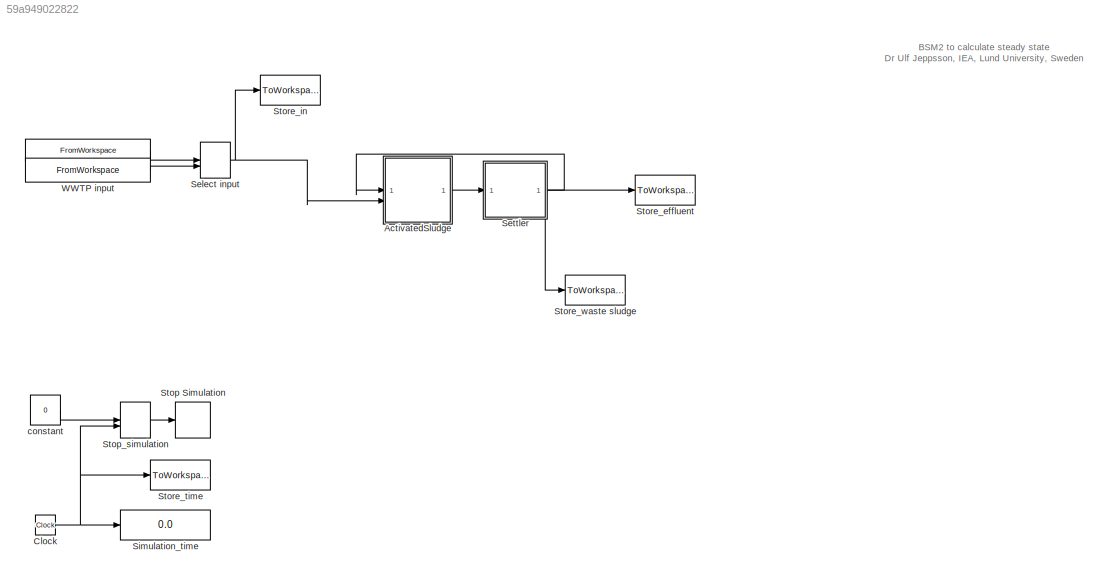
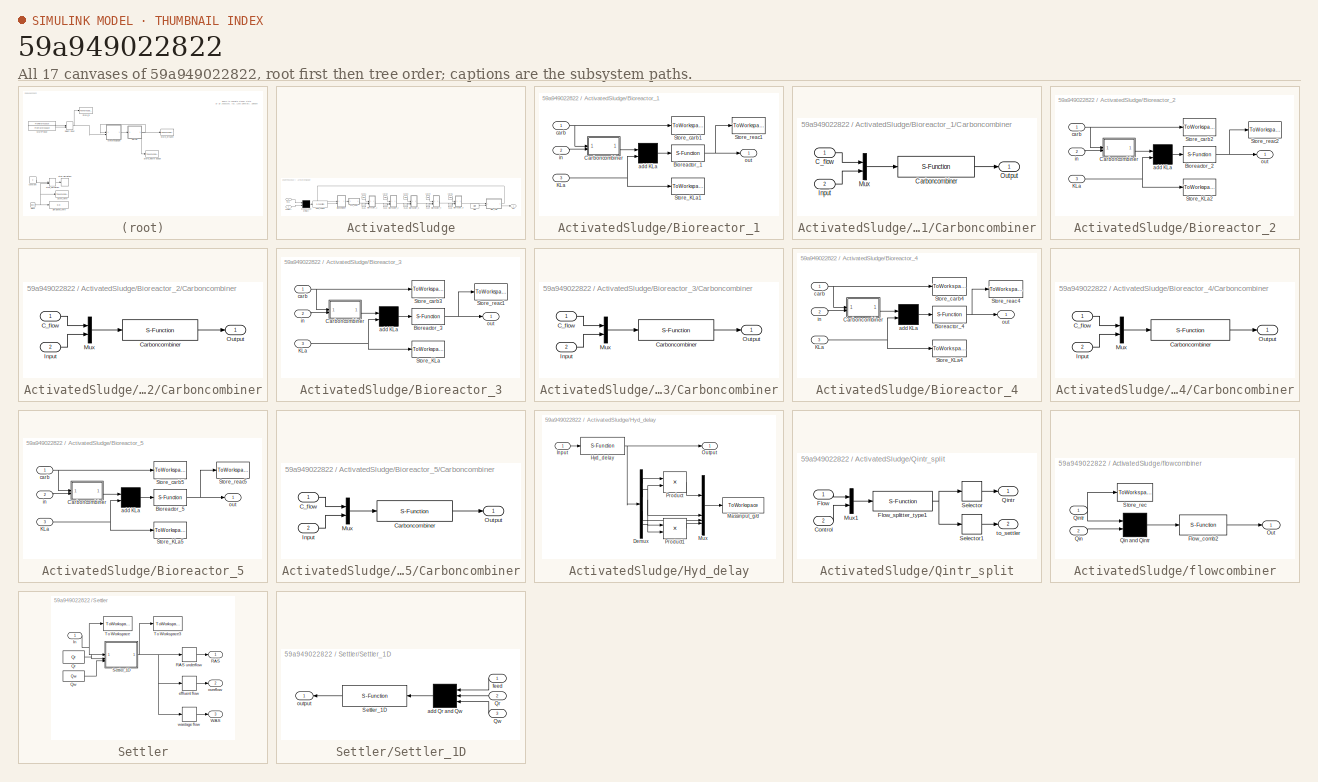
[diagram: thumbnail index - all 17 canvases of the model, root first then tree order]
MODEL slx_59a949022822
KIND model
CONFIG AbsTol = 1e-8
CONFIG EnableMultiTasking = off
CONFIG FixedStep = 0.01
CONFIG MaxStep = auto
CONFIG MinStep = auto
CONFIG RelTol = 1e-5
CONFIG SampleTimeConstraint = Unconstrained
CONFIG SolverName = ode15s
CONFIG StartTime = 0.0
CONFIG StopTime = 50
BLOCK [FromWorkspace]  
  OutputAfterFinalValue = Holding final value
  SampleTime = -1
  VariableName = CONSTINFLUENT_BSM2
  ZeroCross = off
BLOCK [Constant]  constant
  Value = 0
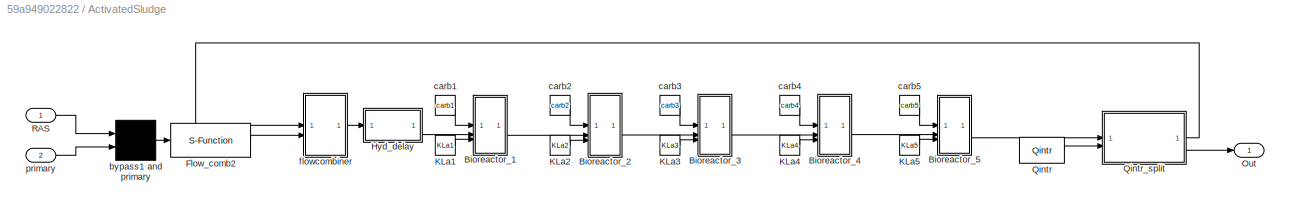
BLOCK [SubSystem] ActivatedSludge
BLOCK [SubSystem] ActivatedSludge/Bioreactor_1
BLOCK [S-Function] ActivatedSludge/Bioreactor_1/Bioreactor_1
  EnableBusSupport = off
  FunctionName = asm1_bsm2
  Parameters = XINIT1,PAR1,VOL1,SOSAT1,TEMPMODEL,ACTIVATE
  SFcnIsStateOwnerBlock = off
  SFunctionDeploymentMode = off
BLOCK [SubSystem] ActivatedSludge/Bioreactor_1/Carboncombiner
BLOCK [Inport] ActivatedSludge/Bioreactor_1/Carboncombiner/C_flow
BLOCK [S-Function] ActivatedSludge/Bioreactor_1/Carboncombiner/Carboncombiner
  EnableBusSupport = off
  FunctionName = carboncombiner_bsm2
  Parameters = CARBONSOURCECONC
  SFcnIsStateOwnerBlock = off
  SFunctionDeploymentMode = off
BLOCK [Inport] ActivatedSludge/Bioreactor_1/Carboncombiner/Input
  Port = 2
BLOCK [Mux] ActivatedSludge/Bioreactor_1/Carboncombiner/Mux
  DisplayOption = bar
  Inputs = 2
BLOCK [Outport] ActivatedSludge/Bioreactor_1/Carboncombiner/Output
BLOCK [Inport] ActivatedSludge/Bioreactor_1/KLa
  Port = 3
BLOCK [ToWorkspace] ActivatedSludge/Bioreactor_1/Store_KLa1
  MaxDataPoints = inf
  SampleTime = -1
  VariableName = kla1in
BLOCK [ToWorkspace] ActivatedSludge/Bioreactor_1/Store_carb1
  MaxDataPoints = inf
  SampleTime = -1
  VariableName = carbon1in
BLOCK [ToWorkspace] ActivatedSludge/Bioreactor_1/Store_reac1
  MaxDataPoints = inf
  SampleTime = -1
  VariableName = reac1
BLOCK [Mux] ActivatedSludge/Bioreactor_1/add KLa
  Inputs = 2
BLOCK [Inport] ActivatedSludge/Bioreactor_1/carb
BLOCK [Inport] ActivatedSludge/Bioreactor_1/in
  Port = 2
BLOCK [Outport] ActivatedSludge/Bioreactor_1/out
BLOCK [SubSystem] ActivatedSludge/Bioreactor_2
BLOCK [S-Function] ActivatedSludge/Bioreactor_2/Bioreactor_2
  EnableBusSupport = off
  FunctionName = asm1_bsm2
  Parameters = XINIT2,PAR2,VOL2,SOSAT2,TEMPMODEL,ACTIVATE
  SFcnIsStateOwnerBlock = off
  SFunctionDeploymentMode = off
BLOCK [SubSystem] ActivatedSludge/Bioreactor_2/Carboncombiner
BLOCK [Inport] ActivatedSludge/Bioreactor_2/Carboncombiner/C_flow
BLOCK [S-Function] ActivatedSludge/Bioreactor_2/Carboncombiner/Carboncombiner
  EnableBusSupport = off
  FunctionName = carboncombiner_bsm2
  Parameters = CARBONSOURCECONC
  SFcnIsStateOwnerBlock = off
  SFunctionDeploymentMode = off
BLOCK [Inport] ActivatedSludge/Bioreactor_2/Carboncombiner/Input
  Port = 2
BLOCK [Mux] ActivatedSludge/Bioreactor_2/Carboncombiner/Mux
  DisplayOption = bar
  Inputs = 2
BLOCK [Outport] ActivatedSludge/Bioreactor_2/Carboncombiner/Output
BLOCK [Inport] ActivatedSludge/Bioreactor_2/KLa
  Port = 3
BLOCK [ToWorkspace] ActivatedSludge/Bioreactor_2/Store_KLa2
  MaxDataPoints = inf
  SampleTime = -1
  VariableName = kla2in
BLOCK [ToWorkspace] ActivatedSludge/Bioreactor_2/Store_carb2
  MaxDataPoints = inf
  SampleTime = -1
  VariableName = carbon2in
BLOCK [ToWorkspace] ActivatedSludge/Bioreactor_2/Store_reac2
  MaxDataPoints = inf
  SampleTime = -1
  VariableName = reac2
BLOCK [Mux] ActivatedSludge/Bioreactor_2/add KLa
  Inputs = 2
BLOCK [Inport] ActivatedSludge/Bioreactor_2/carb
BLOCK [Inport] ActivatedSludge/Bioreactor_2/in
  Port = 2
BLOCK [Outport] ActivatedSludge/Bioreactor_2/out
BLOCK [SubSystem] ActivatedSludge/Bioreactor_3
BLOCK [S-Function] ActivatedSludge/Bioreactor_3/Bioreactor_3
  EnableBusSupport = off
  FunctionName = asm1_bsm2
  Parameters = XINIT3,PAR3,VOL3,SOSAT3,TEMPMODEL,ACTIVATE
  SFcnIsStateOwnerBlock = off
  SFunctionDeploymentMode = off
BLOCK [SubSystem] ActivatedSludge/Bioreactor_3/Carboncombiner
BLOCK [Inport] ActivatedSludge/Bioreactor_3/Carboncombiner/C_flow
BLOCK [S-Function] ActivatedSludge/Bioreactor_3/Carboncombiner/Carboncombiner
  EnableBusSupport = off
  FunctionName = carboncombiner_bsm2
  Parameters = CARBONSOURCECONC
  SFcnIsStateOwnerBlock = off
  SFunctionDeploymentMode = off
BLOCK [Inport] ActivatedSludge/Bioreactor_3/Carboncombiner/Input
  Port = 2
BLOCK [Mux] ActivatedSludge/Bioreactor_3/Carboncombiner/Mux
  DisplayOption = bar
  Inputs = 2
BLOCK [Outport] ActivatedSludge/Bioreactor_3/Carboncombiner/Output
BLOCK [Inport] ActivatedSludge/Bioreactor_3/KLa
  Port = 3
BLOCK [ToWorkspace] ActivatedSludge/Bioreactor_3/Store_KLa
  MaxDataPoints = inf
  SampleTime = -1
  VariableName = kla3in
BLOCK [ToWorkspace] ActivatedSludge/Bioreactor_3/Store_carb3
  MaxDataPoints = inf
  SampleTime = -1
  VariableName = carbon3in
BLOCK [ToWorkspace] ActivatedSludge/Bioreactor_3/Store_reac1
  MaxDataPoints = inf
  SampleTime = -1
  VariableName = reac3
BLOCK [Mux] ActivatedSludge/Bioreactor_3/add KLa
  Inputs = 2
BLOCK [Inport] ActivatedSludge/Bioreactor_3/carb
BLOCK [Inport] ActivatedSludge/Bioreactor_3/in
  Port = 2
BLOCK [Outport] ActivatedSludge/Bioreactor_3/out
BLOCK [SubSystem] ActivatedSludge/Bioreactor_4
BLOCK [S-Function] ActivatedSludge/Bioreactor_4/Bioreactor_4
  EnableBusSupport = off
  FunctionName = asm1_bsm2
  Parameters = XINIT4,PAR4,VOL4,SOSAT4,TEMPMODEL,ACTIVATE
  SFcnIsStateOwnerBlock = off
  SFunctionDeploymentMode = off
BLOCK [SubSystem] ActivatedSludge/Bioreactor_4/Carboncombiner
BLOCK [Inport] ActivatedSludge/Bioreactor_4/Carboncombiner/C_flow
BLOCK [S-Function] ActivatedSludge/Bioreactor_4/Carboncombiner/Carboncombiner
  EnableBusSupport = off
  FunctionName = carboncombiner_bsm2
  Parameters = CARBONSOURCECONC
  SFcnIsStateOwnerBlock = off
  SFunctionDeploymentMode = off
BLOCK [Inport] ActivatedSludge/Bioreactor_4/Carboncombiner/Input
  Port = 2
BLOCK [Mux] ActivatedSludge/Bioreactor_4/Carboncombiner/Mux
  DisplayOption = bar
  Inputs = 2
BLOCK [Outport] ActivatedSludge/Bioreactor_4/Carboncombiner/Output
BLOCK [Inport] ActivatedSludge/Bioreactor_4/KLa
  Port = 3
BLOCK [ToWorkspace] ActivatedSludge/Bioreactor_4/Store_KLa4
  MaxDataPoints = inf
  SampleTime = -1
  VariableName = kla4in
BLOCK [ToWorkspace] ActivatedSludge/Bioreactor_4/Store_carb4
  MaxDataPoints = inf
  SampleTime = -1
  VariableName = carbon4in
BLOCK [ToWorkspace] ActivatedSludge/Bioreactor_4/Store_reac4
  MaxDataPoints = inf
  SampleTime = -1
  VariableName = reac4
BLOCK [Mux] ActivatedSludge/Bioreactor_4/add KLa
  Inputs = 2
BLOCK [Inport] ActivatedSludge/Bioreactor_4/carb
BLOCK [Inport] ActivatedSludge/Bioreactor_4/in
  Port = 2
BLOCK [Outport] ActivatedSludge/Bioreactor_4/out
BLOCK [SubSystem] ActivatedSludge/Bioreactor_5
BLOCK [S-Function] ActivatedSludge/Bioreactor_5/Bioreactor_5
  EnableBusSupport = off
  FunctionName = asm1_bsm2
  Parameters = XINIT5,PAR5,VOL5,SOSAT5,TEMPMODEL,ACTIVATE
  SFcnIsStateOwnerBlock = off
  SFunctionDeploymentMode = off
BLOCK [SubSystem] ActivatedSludge/Bioreactor_5/Carboncombiner
BLOCK [Inport] ActivatedSludge/Bioreactor_5/Carboncombiner/C_flow
BLOCK [S-Function] ActivatedSludge/Bioreactor_5/Carboncombiner/Carboncombiner
  EnableBusSupport = off
  FunctionName = carboncombiner_bsm2
  Parameters = CARBONSOURCECONC
  SFcnIsStateOwnerBlock = off
  SFunctionDeploymentMode = off
BLOCK [Inport] ActivatedSludge/Bioreactor_5/Carboncombiner/Input
  Port = 2
BLOCK [Mux] ActivatedSludge/Bioreactor_5/Carboncombiner/Mux
  DisplayOption = bar
  Inputs = 2
BLOCK [Outport] ActivatedSludge/Bioreactor_5/Carboncombiner/Output
BLOCK [Inport] ActivatedSludge/Bioreactor_5/KLa
  Port = 3
BLOCK [ToWorkspace] ActivatedSludge/Bioreactor_5/Store_KLa5
  MaxDataPoints = inf
  SampleTime = -1
  VariableName = kla5in
BLOCK [ToWorkspace] ActivatedSludge/Bioreactor_5/Store_carb5
  MaxDataPoints = inf
  SampleTime = -1
  VariableName = carbon5in
BLOCK [ToWorkspace] ActivatedSludge/Bioreactor_5/Store_reac5
  MaxDataPoints = inf
  SampleTime = -1
  VariableName = reac5
BLOCK [Mux] ActivatedSludge/Bioreactor_5/add KLa
  Inputs = 2
BLOCK [Inport] ActivatedSludge/Bioreactor_5/carb
BLOCK [Inport] ActivatedSludge/Bioreactor_5/in
  Port = 2
BLOCK [Outport] ActivatedSludge/Bioreactor_5/out
BLOCK [S-Function] ActivatedSludge/Flow_comb2
  EnableBusSupport = off
  FunctionName = combiner_bsm2
  SFcnIsStateOwnerBlock = off
  SFunctionDeploymentMode = off
BLOCK [SubSystem] ActivatedSludge/Hyd_delay
BLOCK [Demux] ActivatedSludge/Hyd_delay/Demux
  DisplayOption = none
  Outputs = [14,1,1,5]
BLOCK [S-Function] ActivatedSludge/Hyd_delay/Hyd_delay
  EnableBusSupport = off
  FunctionName = hyddelayv3_bsm2
  Parameters = XINITDELAY,PAR1,T
  SFcnIsStateOwnerBlock = off
  SFunctionDeploymentMode = off
BLOCK [Inport] ActivatedSludge/Hyd_delay/Input
BLOCK [ToWorkspace] ActivatedSludge/Hyd_delay/Massinput_g//d
  MaxDataPoints = inf
  SampleTime = -1
  VariableName = ASinput
BLOCK [Mux] ActivatedSludge/Hyd_delay/Mux
  DisplayOption = bar
BLOCK [Outport] ActivatedSludge/Hyd_delay/Output
BLOCK [Product] ActivatedSludge/Hyd_delay/Product
  OutDataTypeStr = Inherit: Same as first input
  SaturateOnIntegerOverflow = on
BLOCK [Product] ActivatedSludge/Hyd_delay/Product1
  OutDataTypeStr = Inherit: Same as first input
  SaturateOnIntegerOverflow = on
BLOCK [Constant] ActivatedSludge/KLa1
  Value = KLa1
BLOCK [Constant] ActivatedSludge/KLa2
  Value = KLa2
BLOCK [Constant] ActivatedSludge/KLa3
  Value = KLa3
BLOCK [Constant] ActivatedSludge/KLa4
  Value = KLa4
BLOCK [Constant] ActivatedSludge/KLa5
  Value = KLa5
BLOCK [Outport] ActivatedSludge/Out
BLOCK [Constant] ActivatedSludge/Qintr
  Value = Qintr
BLOCK [SubSystem] ActivatedSludge/Qintr_split
BLOCK [Inport] ActivatedSludge/Qintr_split/Control
  Port = 2
BLOCK [Inport] ActivatedSludge/Qintr_split/Flow
BLOCK [S-Function] ActivatedSludge/Qintr_split/Flow_splitter_type1
  EnableBusSupport = off
  FunctionName = flowsplitter_bsm2
  Parameters = Qintrtype
  SFcnIsStateOwnerBlock = off
  SFunctionDeploymentMode = off
BLOCK [Mux] ActivatedSludge/Qintr_split/Mux1
  DisplayOption = bar
  Inputs = 2
BLOCK [Outport] ActivatedSludge/Qintr_split/Qintr
BLOCK [Selector] ActivatedSludge/Qintr_split/Selector
  IndexOptions = Index vector (dialog)
  Indices = [1:21]
  InputPortWidth = 42
  OutputSizes = 1
BLOCK [Selector] ActivatedSludge/Qintr_split/Selector1
  IndexOptions = Index vector (dialog)
  Indices = [22:42]
  InputPortWidth = 42
  OutputSizes = 1
BLOCK [Outport] ActivatedSludge/Qintr_split/to_settler
  Port = 2
BLOCK [Inport] ActivatedSludge/RAS
BLOCK [Mux] ActivatedSludge/bypass1 and primary
  Inputs = 2
BLOCK [Constant] ActivatedSludge/carb1
  NameLocation = top
  Value = carb1
BLOCK [Constant] ActivatedSludge/carb2
  NameLocation = top
  Value = carb2
BLOCK [Constant] ActivatedSludge/carb3
  NameLocation = top
  Value = carb3
BLOCK [Constant] ActivatedSludge/carb4
  NameLocation = top
  Value = carb4
BLOCK [Constant] ActivatedSludge/carb5
  NameLocation = top
  Value = carb5
BLOCK [SubSystem] ActivatedSludge/flowcombiner
BLOCK [S-Function] ActivatedSludge/flowcombiner/Flow_comb2
  EnableBusSupport = off
  FunctionName = combiner_bsm2
  SFcnIsStateOwnerBlock = off
  SFunctionDeploymentMode = off
BLOCK [Outport] ActivatedSludge/flowcombiner/Out
BLOCK [Inport] ActivatedSludge/flowcombiner/Qin
  Port = 2
BLOCK [Mux] ActivatedSludge/flowcombiner/Qin and Qintr
  Inputs = 2
BLOCK [Inport] ActivatedSludge/flowcombiner/Qintr
BLOCK [ToWorkspace] ActivatedSludge/flowcombiner/Store_rec
  MaxDataPoints = inf
  VariableName = rec
BLOCK [Inport] ActivatedSludge/primary
  Port = 2
BLOCK [Clock] Clock
BLOCK [ManualSwitch] Select input
  CurrentSetting = 0
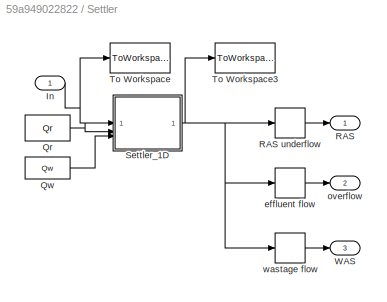
BLOCK [SubSystem] Settler
BLOCK [Inport] Settler/In
BLOCK [Constant] Settler/Qr
  Value = Qr
BLOCK [Constant] Settler/Qw
  Value = Qw
BLOCK [Outport] Settler/RAS
BLOCK [Selector] Settler/RAS underflow
  IndexOptions = Index vector (dialog)
  Indices = [1:21]
  InputPortWidth = 166
  OutputSizes = 1
BLOCK [SubSystem] Settler/Settler_1D
BLOCK [Inport] Settler/Settler_1D/Qr
  Port = 2
BLOCK [Inport] Settler/Settler_1D/Qw
  Port = 3
BLOCK [S-Function] Settler/Settler_1D/Settler_1D
  EnableBusSupport = off
  FunctionName = settler1dv5_bsm2
  Parameters = SETTLERINIT,SETTLERPAR,DIM,LAYER,MODELTYPE,TEMPMODEL,ACTIVATE
  SFcnIsStateOwnerBlock = off
  SFunctionDeploymentMode = off
BLOCK [Mux] Settler/Settler_1D/add Qr and Qw
  Inputs = 3
BLOCK [Inport] Settler/Settler_1D/feed
BLOCK [Outport] Settler/Settler_1D/output
BLOCK [ToWorkspace] Settler/To Workspace
  MaxDataPoints = inf
  VariableName = feed
BLOCK [ToWorkspace] Settler/To Workspace3
  MaxDataPoints = inf
  VariableName = settler
BLOCK [Outport] Settler/WAS
  Port = 3
BLOCK [Selector] Settler/effluent flow
  IndexOptions = Index vector (dialog)
  Indices = [23:43]
  InputPortWidth = 166
  OutputSizes = 1
BLOCK [Outport] Settler/overflow
  Port = 2
BLOCK [Selector] Settler/wastage flow
  IndexOptions = Index vector (dialog)
  Indices = [1:14,22,16:21]
  InputPortWidth = 166
  OutputSizes = 1
BLOCK [Display] Simulation_time
  Decimation = 1
BLOCK [Stop] Stop Simulation
BLOCK [ManualSwitch] Stop_simulation
BLOCK [ToWorkspace] Store_effluent
  MaxDataPoints = inf
  VariableName = effluent
BLOCK [ToWorkspace] Store_in
  MaxDataPoints = inf
  VariableName = in
BLOCK [ToWorkspace] Store_time
  MaxDataPoints = inf
  VariableName = time
BLOCK [ToWorkspace] Store_waste sludge
  MaxDataPoints = inf
  VariableName = waste
BLOCK [FromWorkspace] WWTP input
  OutputAfterFinalValue = Holding final value
  SampleTime = -1
  VariableName = DYNINFLUENT_BSM2
  ZeroCross = off
ANNOTATION (root): BSM2 to calculate steady state Dr Ulf Jeppsson, IEA, Lund University, Sweden
LINE  :1 -> Select input:1
LINE  constant:1 -> Stop_simulation:1
NET ActivatedSludge/Bioreactor_1/Bioreactor_1:1 -> ActivatedSludge/Bioreactor_1/Store_reac1:1, ActivatedSludge/Bioreactor_1/out:1
LINE ActivatedSludge/Bioreactor_1/Carboncombiner/C_flow:1 -> ActivatedSludge/Bioreactor_1/Carboncombiner/Mux:1
LINE ActivatedSludge/Bioreactor_1/Carboncombiner/Carboncombiner:1 -> ActivatedSludge/Bioreactor_1/Carboncombiner/Output:1
LINE ActivatedSludge/Bioreactor_1/Carboncombiner/Input:1 -> ActivatedSludge/Bioreactor_1/Carboncombiner/Mux:2
LINE ActivatedSludge/Bioreactor_1/Carboncombiner/Mux:1 -> ActivatedSludge/Bioreactor_1/Carboncombiner/Carboncombiner:1
LINE ActivatedSludge/Bioreactor_1/Carboncombiner:1 -> ActivatedSludge/Bioreactor_1/add KLa:1
NET ActivatedSludge/Bioreactor_1/KLa:1 -> ActivatedSludge/Bioreactor_1/Store_KLa1:1, ActivatedSludge/Bioreactor_1/add KLa:2
LINE ActivatedSludge/Bioreactor_1/add KLa:1 -> ActivatedSludge/Bioreactor_1/Bioreactor_1:1
NET ActivatedSludge/Bioreactor_1/carb:1 -> ActivatedSludge/Bioreactor_1/Carboncombiner:1, ActivatedSludge/Bioreactor_1/Store_carb1:1
LINE ActivatedSludge/Bioreactor_1/in:1 -> ActivatedSludge/Bioreactor_1/Carboncombiner:2
LINE ActivatedSludge/Bioreactor_1:1 -> ActivatedSludge/Bioreactor_2:2
NET ActivatedSludge/Bioreactor_2/Bioreactor_2:1 -> ActivatedSludge/Bioreactor_2/Store_reac2:1, ActivatedSludge/Bioreactor_2/out:1
LINE ActivatedSludge/Bioreactor_2/Carboncombiner/C_flow:1 -> ActivatedSludge/Bioreactor_2/Carboncombiner/Mux:1
LINE ActivatedSludge/Bioreactor_2/Carboncombiner/Carboncombiner:1 -> ActivatedSludge/Bioreactor_2/Carboncombiner/Output:1
LINE ActivatedSludge/Bioreactor_2/Carboncombiner/Input:1 -> ActivatedSludge/Bioreactor_2/Carboncombiner/Mux:2
LINE ActivatedSludge/Bioreactor_2/Carboncombiner/Mux:1 -> ActivatedSludge/Bioreactor_2/Carboncombiner/Carboncombiner:1
LINE ActivatedSludge/Bioreactor_2/Carboncombiner:1 -> ActivatedSludge/Bioreactor_2/add KLa:1
NET ActivatedSludge/Bioreactor_2/KLa:1 -> ActivatedSludge/Bioreactor_2/Store_KLa2:1, ActivatedSludge/Bioreactor_2/add KLa:2
LINE ActivatedSludge/Bioreactor_2/add KLa:1 -> ActivatedSludge/Bioreactor_2/Bioreactor_2:1
NET ActivatedSludge/Bioreactor_2/carb:1 -> ActivatedSludge/Bioreactor_2/Carboncombiner:1, ActivatedSludge/Bioreactor_2/Store_carb2:1
LINE ActivatedSludge/Bioreactor_2/in:1 -> ActivatedSludge/Bioreactor_2/Carboncombiner:2
LINE ActivatedSludge/Bioreactor_2:1 -> ActivatedSludge/Bioreactor_3:2
NET ActivatedSludge/Bioreactor_3/Bioreactor_3:1 -> ActivatedSludge/Bioreactor_3/Store_reac1:1, ActivatedSludge/Bioreactor_3/out:1
LINE ActivatedSludge/Bioreactor_3/Carboncombiner/C_flow:1 -> ActivatedSludge/Bioreactor_3/Carboncombiner/Mux:1
LINE ActivatedSludge/Bioreactor_3/Carboncombiner/Carboncombiner:1 -> ActivatedSludge/Bioreactor_3/Carboncombiner/Output:1
LINE ActivatedSludge/Bioreactor_3/Carboncombiner/Input:1 -> ActivatedSludge/Bioreactor_3/Carboncombiner/Mux:2
LINE ActivatedSludge/Bioreactor_3/Carboncombiner/Mux:1 -> ActivatedSludge/Bioreactor_3/Carboncombiner/Carboncombiner:1
LINE ActivatedSludge/Bioreactor_3/Carboncombiner:1 -> ActivatedSludge/Bioreactor_3/add KLa:1
NET ActivatedSludge/Bioreactor_3/KLa:1 -> ActivatedSludge/Bioreactor_3/Store_KLa:1, ActivatedSludge/Bioreactor_3/add KLa:2
LINE ActivatedSludge/Bioreactor_3/add KLa:1 -> ActivatedSludge/Bioreactor_3/Bioreactor_3:1
NET ActivatedSludge/Bioreactor_3/carb:1 -> ActivatedSludge/Bioreactor_3/Carboncombiner:1, ActivatedSludge/Bioreactor_3/Store_carb3:1
LINE ActivatedSludge/Bioreactor_3/in:1 -> ActivatedSludge/Bioreactor_3/Carboncombiner:2
LINE ActivatedSludge/Bioreactor_3:1 -> ActivatedSludge/Bioreactor_4:2
NET ActivatedSludge/Bioreactor_4/Bioreactor_4:1 -> ActivatedSludge/Bioreactor_4/Store_reac4:1, ActivatedSludge/Bioreactor_4/out:1
LINE ActivatedSludge/Bioreactor_4/Carboncombiner/C_flow:1 -> ActivatedSludge/Bioreactor_4/Carboncombiner/Mux:1
LINE ActivatedSludge/Bioreactor_4/Carboncombiner/Carboncombiner:1 -> ActivatedSludge/Bioreactor_4/Carboncombiner/Output:1
LINE ActivatedSludge/Bioreactor_4/Carboncombiner/Input:1 -> ActivatedSludge/Bioreactor_4/Carboncombiner/Mux:2
LINE ActivatedSludge/Bioreactor_4/Carboncombiner/Mux:1 -> ActivatedSludge/Bioreactor_4/Carboncombiner/Carboncombiner:1
LINE ActivatedSludge/Bioreactor_4/Carboncombiner:1 -> ActivatedSludge/Bioreactor_4/add KLa:1
NET ActivatedSludge/Bioreactor_4/KLa:1 -> ActivatedSludge/Bioreactor_4/Store_KLa4:1, ActivatedSludge/Bioreactor_4/add KLa:2
LINE ActivatedSludge/Bioreactor_4/add KLa:1 -> ActivatedSludge/Bioreactor_4/Bioreactor_4:1
NET ActivatedSludge/Bioreactor_4/carb:1 -> ActivatedSludge/Bioreactor_4/Carboncombiner:1, ActivatedSludge/Bioreactor_4/Store_carb4:1
LINE ActivatedSludge/Bioreactor_4/in:1 -> ActivatedSludge/Bioreactor_4/Carboncombiner:2
LINE ActivatedSludge/Bioreactor_4:1 -> ActivatedSludge/Bioreactor_5:2
NET ActivatedSludge/Bioreactor_5/Bioreactor_5:1 -> ActivatedSludge/Bioreactor_5/Store_reac5:1, ActivatedSludge/Bioreactor_5/out:1
LINE ActivatedSludge/Bioreactor_5/Carboncombiner/C_flow:1 -> ActivatedSludge/Bioreactor_5/Carboncombiner/Mux:1
LINE ActivatedSludge/Bioreactor_5/Carboncombiner/Carboncombiner:1 -> ActivatedSludge/Bioreactor_5/Carboncombiner/Output:1
LINE ActivatedSludge/Bioreactor_5/Carboncombiner/Input:1 -> ActivatedSludge/Bioreactor_5/Carboncombiner/Mux:2
LINE ActivatedSludge/Bioreactor_5/Carboncombiner/Mux:1 -> ActivatedSludge/Bioreactor_5/Carboncombiner/Carboncombiner:1
LINE ActivatedSludge/Bioreactor_5/Carboncombiner:1 -> ActivatedSludge/Bioreactor_5/add KLa:1
NET ActivatedSludge/Bioreactor_5/KLa:1 -> ActivatedSludge/Bioreactor_5/Store_KLa5:1, ActivatedSludge/Bioreactor_5/add KLa:2
LINE ActivatedSludge/Bioreactor_5/add KLa:1 -> ActivatedSludge/Bioreactor_5/Bioreactor_5:1
NET ActivatedSludge/Bioreactor_5/carb:1 -> ActivatedSludge/Bioreactor_5/Carboncombiner:1, ActivatedSludge/Bioreactor_5/Store_carb5:1
LINE ActivatedSludge/Bioreactor_5/in:1 -> ActivatedSludge/Bioreactor_5/Carboncombiner:2
LINE ActivatedSludge/Bioreactor_5:1 -> ActivatedSludge/Qintr_split:1
LINE ActivatedSludge/Flow_comb2:1 -> ActivatedSludge/flowcombiner:2
LINE ActivatedSludge/Hyd_delay/Demux:1 -> ActivatedSludge/Hyd_delay/Product:1
NET ActivatedSludge/Hyd_delay/Demux:2 -> ActivatedSludge/Hyd_delay/Mux:2, ActivatedSludge/Hyd_delay/Product1:1, ActivatedSludge/Hyd_delay/Product:2
LINE ActivatedSludge/Hyd_delay/Demux:3 -> ActivatedSludge/Hyd_delay/Mux:3
LINE ActivatedSludge/Hyd_delay/Demux:4 -> ActivatedSludge/Hyd_delay/Product1:2
NET ActivatedSludge/Hyd_delay/Hyd_delay:1 -> ActivatedSludge/Hyd_delay/Demux:1, ActivatedSludge/Hyd_delay/Output:1
LINE ActivatedSludge/Hyd_delay/Input:1 -> ActivatedSludge/Hyd_delay/Hyd_delay:1
LINE ActivatedSludge/Hyd_delay/Mux:1 -> ActivatedSludge/Hyd_delay/Massinput_g//d:1
LINE ActivatedSludge/Hyd_delay/Product1:1 -> ActivatedSludge/Hyd_delay/Mux:4
LINE ActivatedSludge/Hyd_delay/Product:1 -> ActivatedSludge/Hyd_delay/Mux:1
LINE ActivatedSludge/Hyd_delay:1 -> ActivatedSludge/Bioreactor_1:2
LINE ActivatedSludge/KLa1:1 -> ActivatedSludge/Bioreactor_1:3
LINE ActivatedSludge/KLa2:1 -> ActivatedSludge/Bioreactor_2:3
LINE ActivatedSludge/KLa3:1 -> ActivatedSludge/Bioreactor_3:3
LINE ActivatedSludge/KLa4:1 -> ActivatedSludge/Bioreactor_4:3
LINE ActivatedSludge/KLa5:1 -> ActivatedSludge/Bioreactor_5:3
LINE ActivatedSludge/Qintr:1 -> ActivatedSludge/Qintr_split:2
LINE ActivatedSludge/Qintr_split/Control:1 -> ActivatedSludge/Qintr_split/Mux1:2
LINE ActivatedSludge/Qintr_split/Flow:1 -> ActivatedSludge/Qintr_split/Mux1:1
NET ActivatedSludge/Qintr_split/Flow_splitter_type1:1 -> ActivatedSludge/Qintr_split/Selector1:1, ActivatedSludge/Qintr_split/Selector:1
LINE ActivatedSludge/Qintr_split/Mux1:1 -> ActivatedSludge/Qintr_split/Flow_splitter_type1:1
LINE ActivatedSludge/Qintr_split/Selector1:1 -> ActivatedSludge/Qintr_split/to_settler:1
LINE ActivatedSludge/Qintr_split/Selector:1 -> ActivatedSludge/Qintr_split/Qintr:1
LINE ActivatedSludge/Qintr_split:1 -> ActivatedSludge/flowcombiner:1
LINE ActivatedSludge/Qintr_split:2 -> ActivatedSludge/Out:1
LINE ActivatedSludge/RAS:1 -> ActivatedSludge/bypass1 and primary:1
LINE ActivatedSludge/bypass1 and primary:1 -> ActivatedSludge/Flow_comb2:1
LINE ActivatedSludge/carb1:1 -> ActivatedSludge/Bioreactor_1:1
LINE ActivatedSludge/carb2:1 -> ActivatedSludge/Bioreactor_2:1
LINE ActivatedSludge/carb3:1 -> ActivatedSludge/Bioreactor_3:1
LINE ActivatedSludge/carb4:1 -> ActivatedSludge/Bioreactor_4:1
LINE ActivatedSludge/carb5:1 -> ActivatedSludge/Bioreactor_5:1
LINE ActivatedSludge/flowcombiner/Flow_comb2:1 -> ActivatedSludge/flowcombiner/Out:1
LINE ActivatedSludge/flowcombiner/Qin and Qintr:1 -> ActivatedSludge/flowcombiner/Flow_comb2:1
LINE ActivatedSludge/flowcombiner/Qin:1 -> ActivatedSludge/flowcombiner/Qin and Qintr:2
NET ActivatedSludge/flowcombiner/Qintr:1 -> ActivatedSludge/flowcombiner/Qin and Qintr:1, ActivatedSludge/flowcombiner/Store_rec:1
LINE ActivatedSludge/flowcombiner:1 -> ActivatedSludge/Hyd_delay:1
LINE ActivatedSludge/primary:1 -> ActivatedSludge/bypass1 and primary:2
LINE ActivatedSludge:1 -> Settler:1
NET Clock:1 -> Simulation_time:1, Stop_simulation:2, Store_time:1
NET Select input:1 -> ActivatedSludge:2, Store_in:1
NET Settler/In:1 -> Settler/Settler_1D:1, Settler/To Workspace:1
LINE Settler/Qr:1 -> Settler/Settler_1D:2
LINE Settler/Qw:1 -> Settler/Settler_1D:3
LINE Settler/RAS underflow:1 -> Settler/RAS:1
LINE Settler/Settler_1D/Qr:1 -> Settler/Settler_1D/add Qr and Qw:2
LINE Settler/Settler_1D/Qw:1 -> Settler/Settler_1D/add Qr and Qw:3
LINE Settler/Settler_1D/Settler_1D:1 -> Settler/Settler_1D/output:1
LINE Settler/Settler_1D/add Qr and Qw:1 -> Settler/Settler_1D/Settler_1D:1
LINE Settler/Settler_1D/feed:1 -> Settler/Settler_1D/add Qr and Qw:1
NET Settler/Settler_1D:1 -> Settler/RAS underflow:1, Settler/To Workspace3:1, Settler/effluent flow:1, Settler/wastage flow:1
LINE Settler/effluent flow:1 -> Settler/overflow:1
LINE Settler/wastage flow:1 -> Settler/WAS:1
LINE Settler:1 -> ActivatedSludge:1
LINE Settler:2 -> Store_effluent:1
LINE Settler:3 -> Store_waste sludge:1
LINE Stop_simulation:1 -> Stop Simulation:1
LINE WWTP input:1 -> Select input:2
note: NET lines group one-source signal fan-out (src -> all destinations, sorted); 1:1 wires keep LINE
